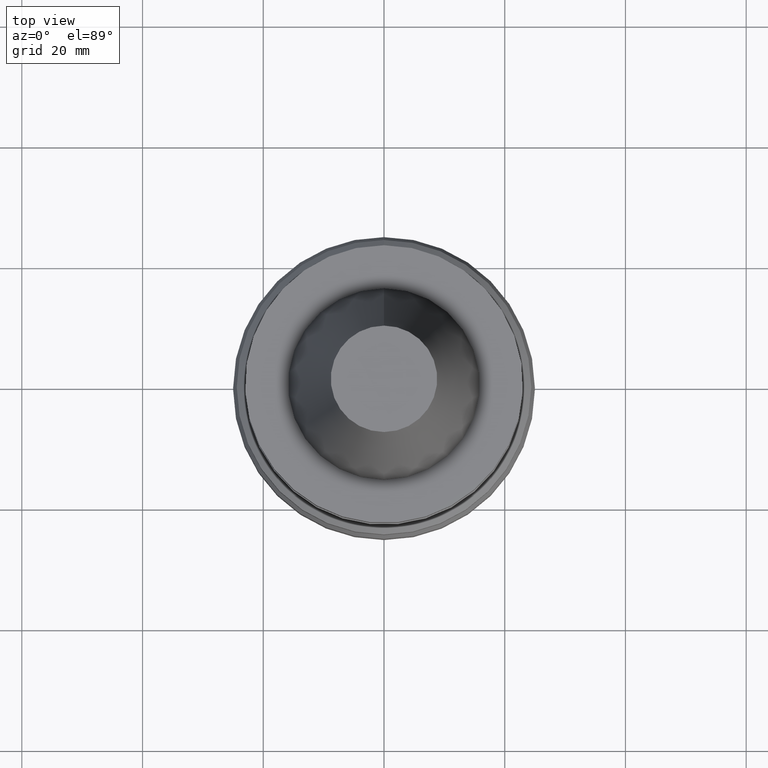
[diagram: clean part render]
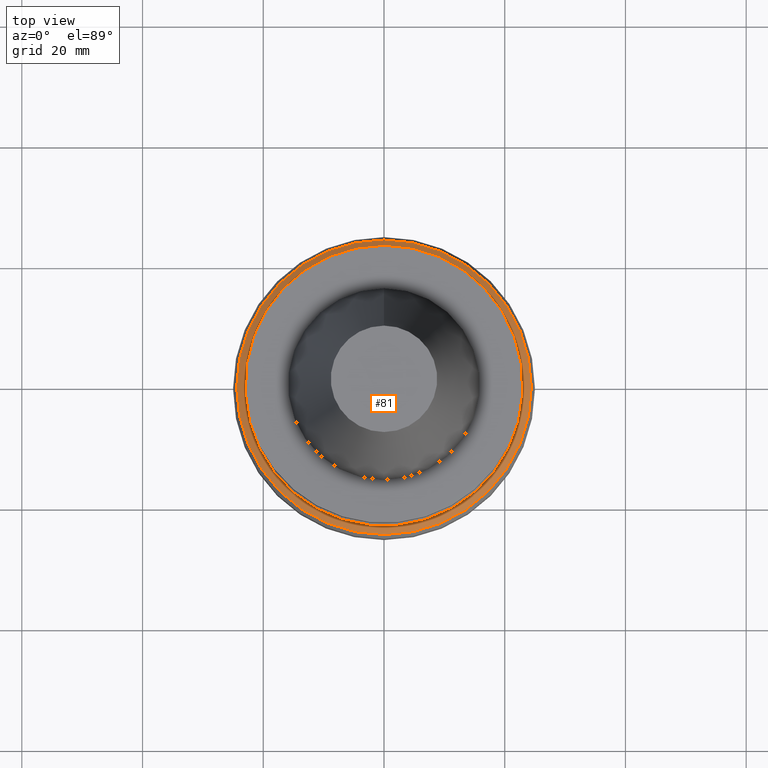
[diagram: same view with one face highlighted and labeled with its STEP entity id]
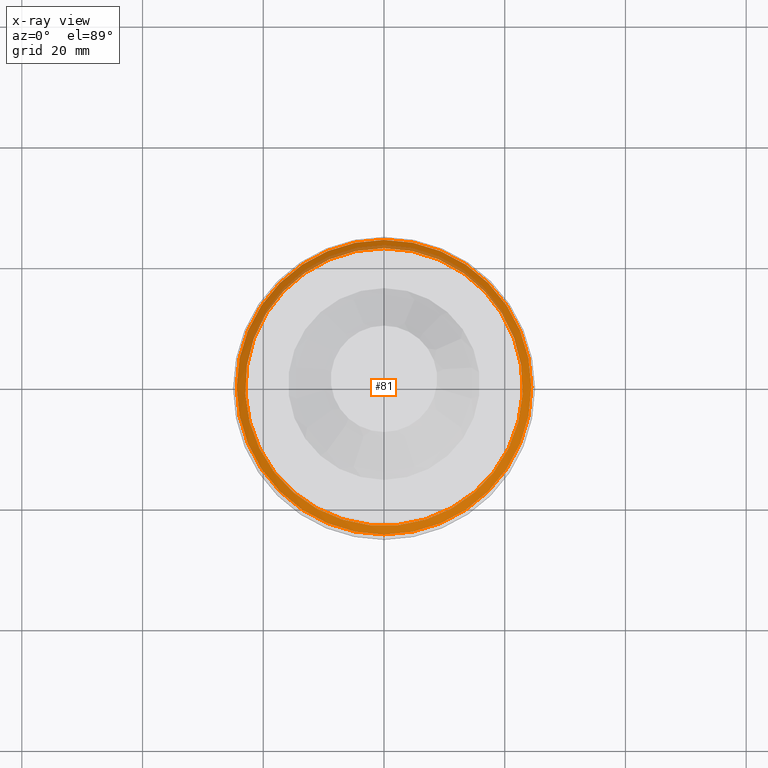
[diagram: x-ray of the same camera — body ghosted, the highlighted face saturated]
A machine part, top view. The second image highlights one B-rep face of the part: STEP entity #81.
The next image is the same camera in x-ray: the body ghosted, the highlighted face saturated — about 11% of this face is hidden behind the body in this view.
In plain terms, the highlighted conical surface has half-angle 45 deg.
Its self-contained STEP definition (entity closure, byte-faithful):
#81=ADVANCED_FACE('',(#108,#109),#110,.T.);
#108=FACE_BOUND('',#148,.T.);
#109=FACE_BOUND('',#149,.T.);
#110=CONICAL_SURFACE('',#150,23.7,0.785398163397448);
#148=EDGE_LOOP('',(#200));
#149=EDGE_LOOP('',(#201));
#150=AXIS2_PLACEMENT_3D('',#202,#203,#204);
#200=ORIENTED_EDGE('',*,*,#245,.F.);
#201=ORIENTED_EDGE('',*,*,#244,.T.);
#202=CARTESIAN_POINT('',(1.8982025386784E-015,3.79640507735679E-015,-31.0));
#203=DIRECTION('',(6.12323399573677E-017,1.22464679914735E-016,-1.0));
#204=DIRECTION('',(-1.23259516440783E-032,1.0,1.22464679914735E-016));
#244=EDGE_CURVE('',#263,#263,#264,.T.);
#245=EDGE_CURVE('',#265,#265,#266,.T.);
#263=VERTEX_POINT('',#289);
#264=CIRCLE('',#290,23.0);
#265=VERTEX_POINT('',#291);
#266=CIRCLE('',#292,24.4);
#289=CARTESIAN_POINT('',(1.85533990070824E-015,23.0,-30.3));
#290=AXIS2_PLACEMENT_3D('',#321,#322,#323);
#291=CARTESIAN_POINT('',(1.94106517664855E-015,24.4,-31.7));
#292=AXIS2_PLACEMENT_3D('',#324,#325,#326);
#321=CARTESIAN_POINT('',(1.85533990070824E-015,3.71067980141648E-015,-30.3));
#322=DIRECTION('',(6.12323399573677E-017,1.22464679914735E-016,-1.0));
#323=DIRECTION('',(-1.23259516440783E-032,1.0,1.22464679914735E-016));
#324=CARTESIAN_POINT('',(1.94106517664855E-015,3.88213035329711E-015,-31.7));
#325=DIRECTION('',(6.12323399573677E-017,1.22464679914735E-016,-1.0));
#326=DIRECTION('',(-1.23259516440783E-032,1.0,1.22464679914735E-016));